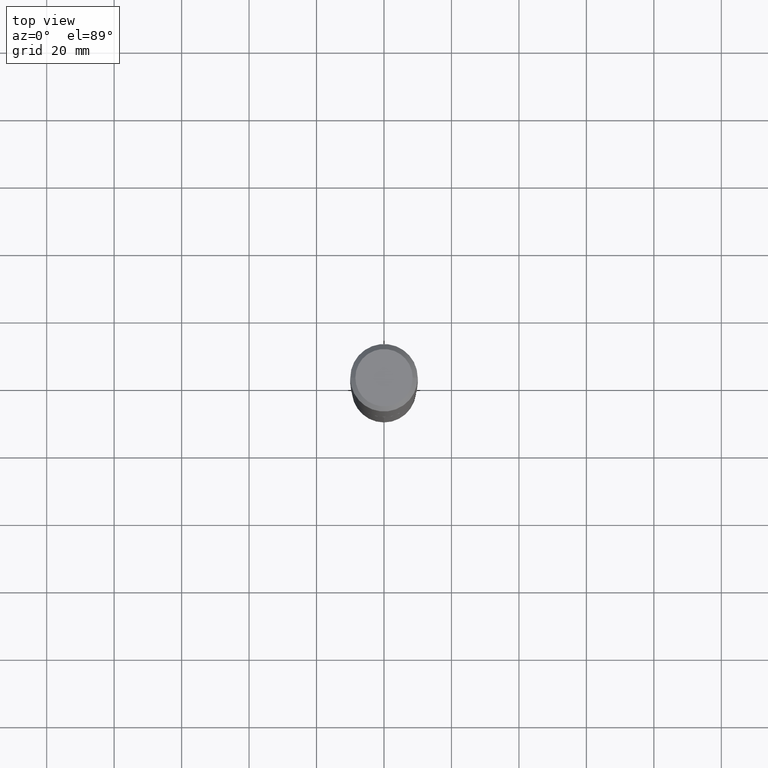
[diagram: clean part render]
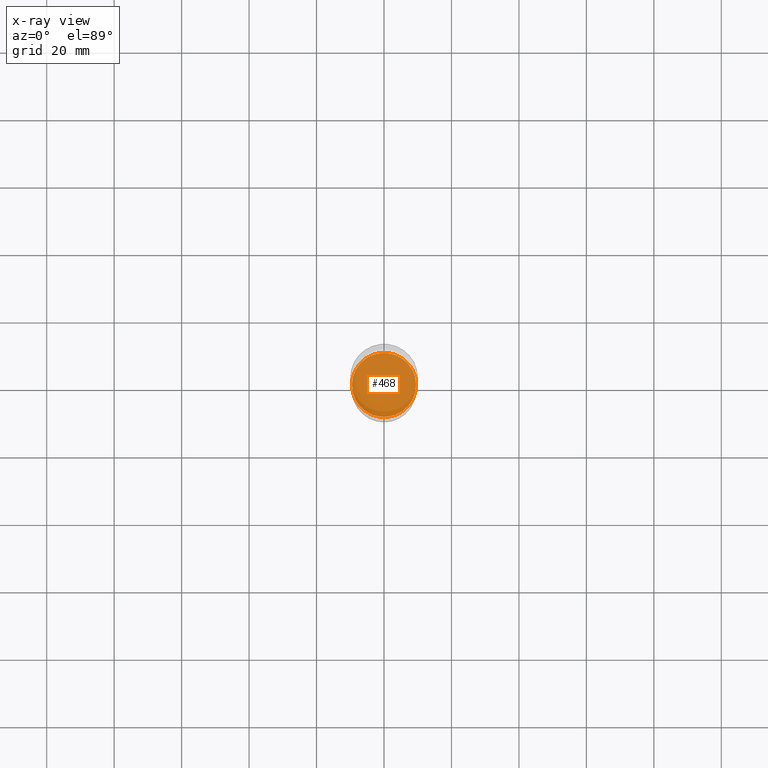
[diagram: x-ray — body ghosted, one internal face saturated and labeled with its STEP entity id]
A machine part, top view, then the same camera in x-ray: the body is ghosted and one INTERNAL B-rep face — a face not visible from any outside direction — is saturated and labeled: STEP entity #468.
In plain terms, the highlighted planar face has unit normal (-0, 0, 1).
Its self-contained STEP definition (entity closure, byte-faithful):
#54 = CARTESIAN_POINT ( 'NONE',  ( 1.700800700278447744E-28, -9.979009940226196819E-15, -4.909600000000001963 ) ) ;
#57 = PLANE ( 'NONE',  #129 ) ;
#66 = CIRCLE ( 'NONE', #341, 0.3745000000000000551 ) ;
#69 = DIRECTION ( 'NONE',  ( -2.445468806185136597E-29, 3.491481338843145583E-15, 1.000000000000000000 ) ) ;
#98 = EDGE_CURVE ( 'NONE', #457, #200, #327, .T. ) ;
#121 = AXIS2_PLACEMENT_3D ( 'NONE', #187, #373, #192 ) ;
#129 = AXIS2_PLACEMENT_3D ( 'NONE', #54, #364, #202 ) ;
#152 = CARTESIAN_POINT ( 'NONE',  ( 0.3745000000000000551, -1.975689630397782116E-14, -4.909600000000001963 ) ) ;
#187 = CARTESIAN_POINT ( 'NONE',  ( 1.200627365084655066E-28, -1.714177678118431257E-14, -4.909600000000001963 ) ) ;
#192 = DIRECTION ( 'NONE',  ( 1.000000000000000000, -6.982962677686268288E-15, 0.000000000000000000 ) ) ;
#200 = VERTEX_POINT ( 'NONE', #152 ) ;
#202 = DIRECTION ( 'NONE',  ( 1.000000000000000000, -6.982962677686265922E-15, 4.876176775795935793E-29 ) ) ;
#281 = CARTESIAN_POINT ( 'NONE',  ( -0.3745000000000000551, -1.447814500858862657E-14, -4.909600000000001963 ) ) ;
#290 = EDGE_LOOP ( 'NONE', ( #365, #321 ) ) ;
#321 = ORIENTED_EDGE ( 'NONE', *, *, #98, .F. ) ;
#327 = CIRCLE ( 'NONE', #121, 0.3745000000000000551 ) ;
#341 = AXIS2_PLACEMENT_3D ( 'NONE', #396, #69, #426 ) ;
#364 = DIRECTION ( 'NONE',  ( -2.438088387897960049E-29, 3.491481338843145188E-15, 1.000000000000000000 ) ) ;
#365 = ORIENTED_EDGE ( 'NONE', *, *, #454, .F. ) ;
#373 = DIRECTION ( 'NONE',  ( -2.445468806185136597E-29, 3.491481338843145583E-15, 1.000000000000000000 ) ) ;
#389 = FACE_OUTER_BOUND ( 'NONE', #290, .T. ) ;
#396 = CARTESIAN_POINT ( 'NONE',  ( 1.200627365084655066E-28, -1.714177678118431257E-14, -4.909600000000001963 ) ) ;
#426 = DIRECTION ( 'NONE',  ( 1.000000000000000000, -6.982962677686268288E-15, 0.000000000000000000 ) ) ;
#454 = EDGE_CURVE ( 'NONE', #200, #457, #66, .T. ) ;
#457 = VERTEX_POINT ( 'NONE', #281 ) ;
#468 = ADVANCED_FACE ( 'NONE', ( #389 ), #57, .F. ) ;